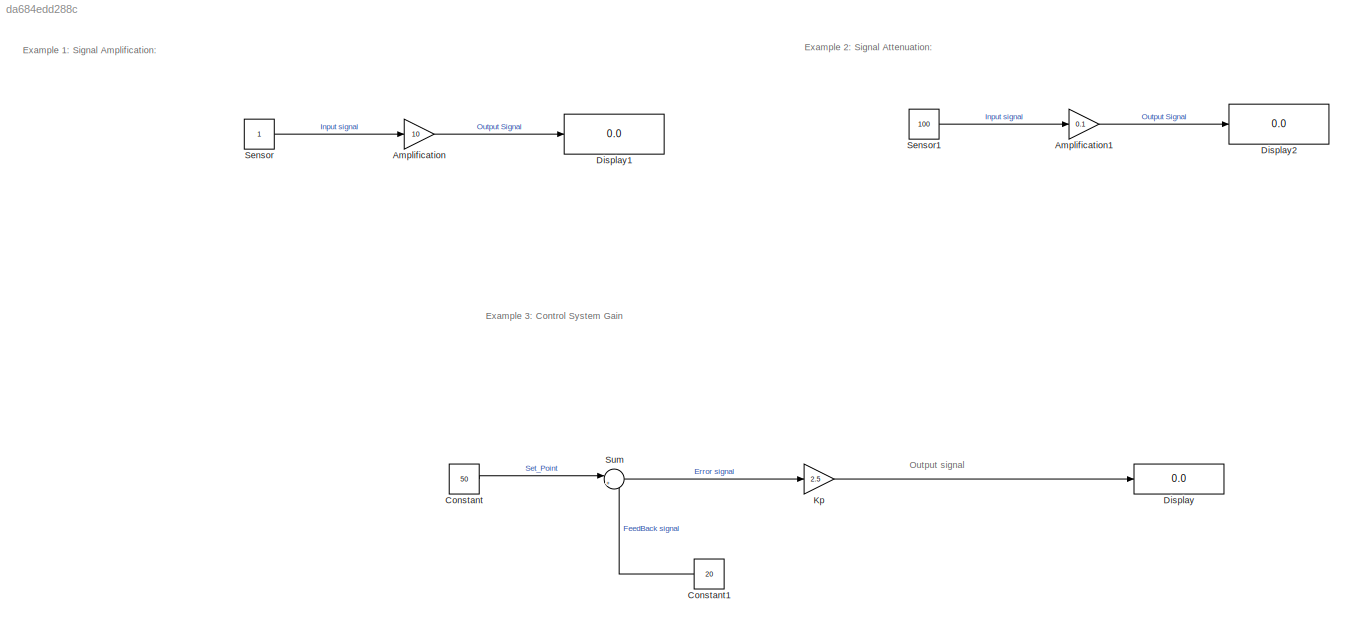
MODEL slx_da684edd288c
KIND model
CONFIG AbsTol = auto
CONFIG EnableMultiTasking = off
CONFIG FixedStep = auto
CONFIG MaxStep = auto
CONFIG MinStep = auto
CONFIG RelTol = 1e-3
CONFIG SampleTimeConstraint = Unconstrained
CONFIG SolverName = VariableStepAuto
CONFIG StartTime = 0.0
CONFIG StopTime = 10.0
BLOCK [Gain] Amplification
  Gain = 10
BLOCK [Gain] Amplification1
  Gain = 0.1
BLOCK [Constant] Constant
  Value = 50
BLOCK [Constant] Constant1
  NameLocation = top
  Value = 20
BLOCK [Display] Display
  Decimation = 1
  Ports = [1]
BLOCK [Display] Display1
  Decimation = 1
  Ports = [1]
BLOCK [Display] Display2
  Decimation = 1
  Ports = [1]
BLOCK [Gain] Kp
  Gain = 2.5
BLOCK [Constant] Sensor
BLOCK [Constant] Sensor1
  Value = 100
BLOCK [Sum] Sum
  Inputs = |+-
  Ports = [2, 1]
ANNOTATION (root): Example 1: Signal Amplification:
ANNOTATION (root): Example 2: Signal Attenuation:
ANNOTATION (root): Example 3: Control System Gain
ANNOTATION (root): Output signal
LINE Amplification1:1 -> Display2:1
LINE Amplification:1 -> Display1:1
LINE Constant1:1 -> Sum:2
LINE Constant:1 -> Sum:1
LINE Kp:1 -> Display:1
LINE Sensor1:1 -> Amplification1:1
LINE Sensor:1 -> Amplification:1
LINE Sum:1 -> Kp:1
